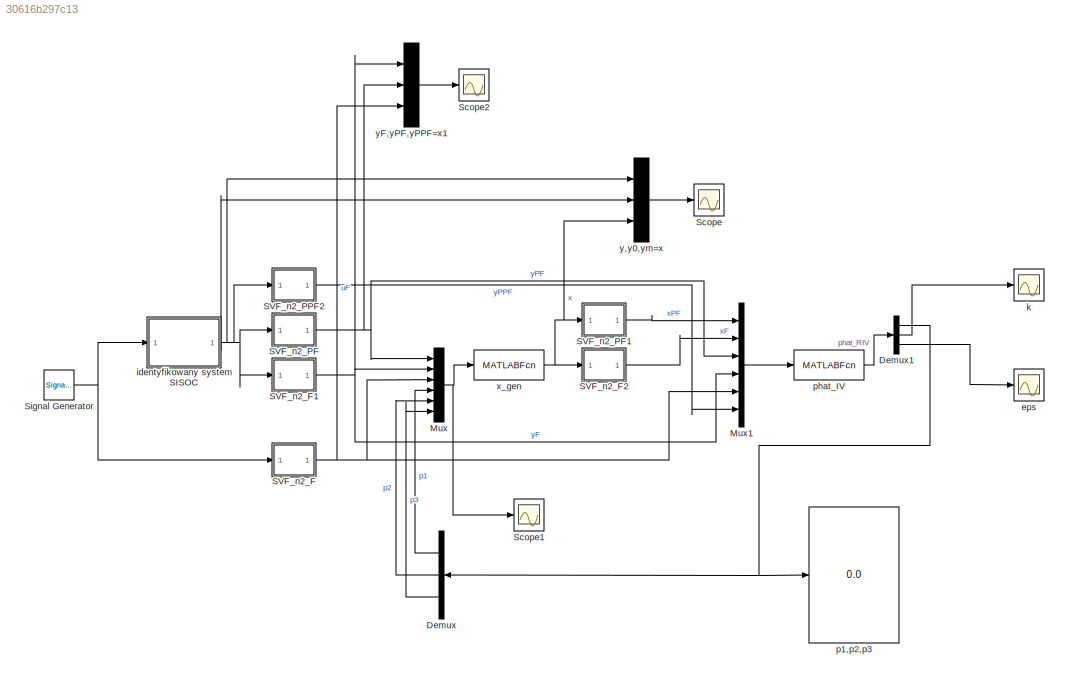
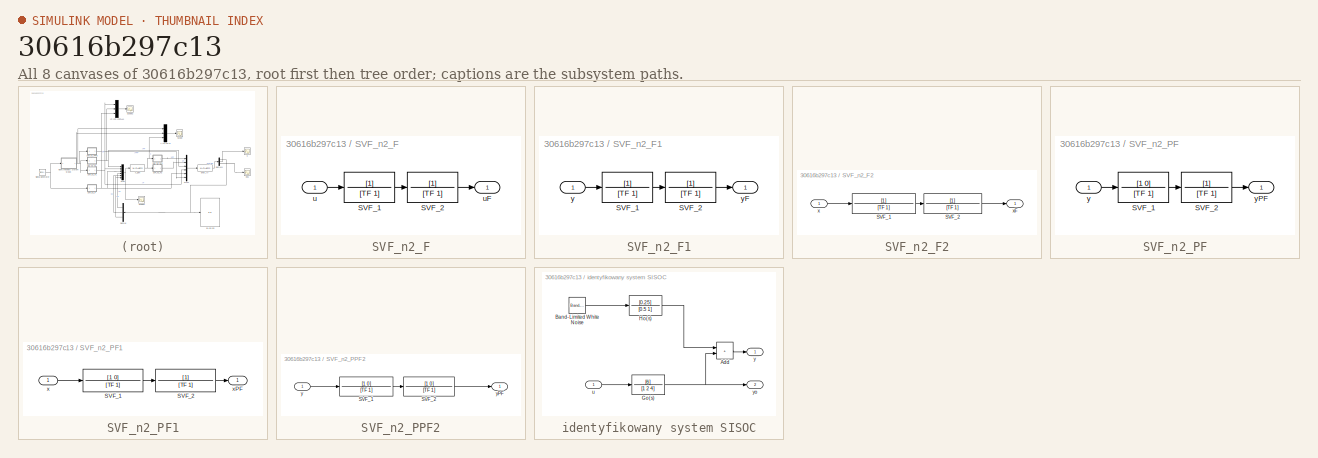
[diagram: thumbnail index - all 8 canvases of the model, root first then tree order]
MODEL mdl_30616b297c13
KIND model
CONFIG AbsTol = auto
CONFIG EnableMultiTasking = on
CONFIG FixedStep = auto
CONFIG InitFcn = PIV_n1 = zeros(3,3);\nphat_RIV_n1 = zeros(3,1);
CONFIG MaxStep = 0.01
CONFIG MinStep = auto
CONFIG RelTol = 1e-3
CONFIG SampleTimeConstraint = Unconstrained
CONFIG SolverName = ode45
CONFIG StartTime = 0.0
CONFIG StopTime = tend
BLOCK [Demux] Demux
  NameLocation = top
  Outputs = 3
BLOCK [Demux] Demux1
  Outputs = [3;3;1]
BLOCK [Mux] Mux
  DisplayOption = bar
  Inputs = 6
BLOCK [Mux] Mux1
  DisplayOption = bar
  Inputs = 6
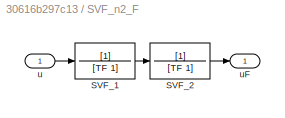
BLOCK [SubSystem] SVF_n2_F
BLOCK [TransferFcn] SVF_n2_F/SVF_1
  Denominator = [TF 1]
BLOCK [TransferFcn] SVF_n2_F/SVF_2
  Denominator = [TF 1]
BLOCK [Inport] SVF_n2_F/u
BLOCK [Outport] SVF_n2_F/uF
BLOCK [SubSystem] SVF_n2_F1
BLOCK [TransferFcn] SVF_n2_F1/SVF_1
  Denominator = [TF 1]
BLOCK [TransferFcn] SVF_n2_F1/SVF_2
  Denominator = [TF 1]
BLOCK [Inport] SVF_n2_F1/y
BLOCK [Outport] SVF_n2_F1/yF
BLOCK [SubSystem] SVF_n2_F2
BLOCK [TransferFcn] SVF_n2_F2/SVF_1
  Denominator = [TF 1]
BLOCK [TransferFcn] SVF_n2_F2/SVF_2
  Denominator = [TF 1]
BLOCK [Inport] SVF_n2_F2/x
BLOCK [Outport] SVF_n2_F2/xF
BLOCK [SubSystem] SVF_n2_PF
BLOCK [TransferFcn] SVF_n2_PF/SVF_1
  Denominator = [TF 1]
  Numerator = [1 0]
BLOCK [TransferFcn] SVF_n2_PF/SVF_2
  Denominator = [TF 1]
BLOCK [Inport] SVF_n2_PF/y
BLOCK [Outport] SVF_n2_PF/yPF
BLOCK [SubSystem] SVF_n2_PF1
BLOCK [TransferFcn] SVF_n2_PF1/SVF_1
  Denominator = [TF 1]
  Numerator = [1 0]
BLOCK [TransferFcn] SVF_n2_PF1/SVF_2
  Denominator = [TF 1]
BLOCK [Inport] SVF_n2_PF1/x
BLOCK [Outport] SVF_n2_PF1/xPF
BLOCK [SubSystem] SVF_n2_PPF2
BLOCK [TransferFcn] SVF_n2_PPF2/SVF_1
  Denominator = [TF 1]
  Numerator = [1 0]
BLOCK [TransferFcn] SVF_n2_PPF2/SVF_2
  Denominator = [TF 1]
  Numerator = [1 0]
BLOCK [Inport] SVF_n2_PPF2/y
BLOCK [Outport] SVF_n2_PPF2/yPF
BLOCK [Scope] Scope
  Floating = off
  NumInputPorts = 1
  ScopeSpecificationString = Simulink.scopes.TimeScopeBlockCfg('CurrentConfiguration', extmgr.ConfigurationSet(extmgr.Configuration('Core','General UI',true),extmgr.Configuration('Core','Source UI',true),extmgr.Configuration('Sources','WiredSimulink',true),extmgr.Configuration('Visuals','Time Domain',true,'SerializedDisplays',{struct('MinYLimReal','-1.00000','MaxYLimReal','1.00000','YLabelReal','','MinYLimMag','0.00000','MaxY...<+1413ch>
BLOCK [Scope] Scope1
  Floating = off
  NumInputPorts = 1
  ScopeSpecificationString = Simulink.scopes.TimeScopeBlockCfg('CurrentConfiguration', extmgr.ConfigurationSet(extmgr.Configuration('Core','General UI',true),extmgr.Configuration('Core','Source UI',true),extmgr.Configuration('Sources','WiredSimulink',true,'DataLoggingVariableName','ScopeData1'),extmgr.Configuration('Visuals','Time Domain',true,'SerializedDisplays',{struct('MinYLimReal','-2.81588','MaxYLimReal','2.79179','YLab...<+1399ch>
BLOCK [Scope] Scope2
  Floating = off
  NumInputPorts = 1
  ScopeSpecificationString = Simulink.scopes.TimeScopeBlockCfg('CurrentConfiguration', extmgr.ConfigurationSet(extmgr.Configuration('Core','General UI',true),extmgr.Configuration('Core','Source UI',true),extmgr.Configuration('Sources','WiredSimulink',true,'DataLoggingVariableName','ScopeData1'),extmgr.Configuration('Visuals','Time Domain',true,'SerializedDisplays',{struct('MinYLimReal','-1.00000','MaxYLimReal','1.00000','YLab...<+1401ch>
BLOCK [SignalGenerator] Signal Generator
  Frequency = 0.04
  WaveForm = square
BLOCK [Scope] eps
  Floating = off
  NumInputPorts = 1
  ScopeSpecificationString = Simulink.scopes.TimeScopeBlockCfg('CurrentConfiguration', extmgr.ConfigurationSet(extmgr.Configuration('Core','General UI',true),extmgr.Configuration('Core','Source UI',true),extmgr.Configuration('Sources','WiredSimulink',true,'DataLoggingVariableName','ScopeData3'),extmgr.Configuration('Visuals','Time Domain',true,'SerializedDisplays',{struct('MinYLimReal','-1.00000','MaxYLimReal','1.00000','YLab...<+1396ch>
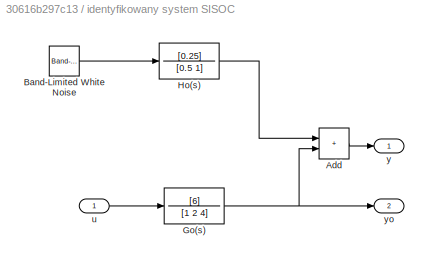
BLOCK [SubSystem] identyfikowany system SISOC
BLOCK [Sum] identyfikowany system SISOC/Add
  IconShape = rectangular
BLOCK [Reference] identyfikowany system SISOC/Band-Limited White Noise  REF=simulink/Sources/Band-Limited
White Noise
  SourceBlock = simulink/Sources/Band-Limited\nWhite Noise
  SourceType = Band-Limited White Noise.
BLOCK [TransferFcn] identyfikowany system SISOC/Go(s)
  Denominator = [1 2 4]
  Numerator = [6]
BLOCK [TransferFcn] identyfikowany system SISOC/Ho(s)
  Denominator = [0.5 1]
  Numerator = [0.25]
BLOCK [Inport] identyfikowany system SISOC/u
BLOCK [Outport] identyfikowany system SISOC/y
BLOCK [Outport] identyfikowany system SISOC/yo
  Port = 2
BLOCK [Scope] k
  Floating = off
  NumInputPorts = 1
  ScopeSpecificationString = Simulink.scopes.TimeScopeBlockCfg('CurrentConfiguration', extmgr.ConfigurationSet(extmgr.Configuration('Core','General UI',true),extmgr.Configuration('Core','Source UI',true),extmgr.Configuration('Sources','WiredSimulink',true,'DataLoggingVariableName','ScopeData2'),extmgr.Configuration('Visuals','Time Domain',true,'SerializedDisplays',{struct('MinYLimReal','-1.00000','MaxYLimReal','1.00000','YLab...<+1423ch>
BLOCK [Display] p1,p2,p3
  Decimation = 1
BLOCK [MATLABFcn] phat_IV
  MATLABFcn = PIV
  OutputDimensions = 7
  OutputSignalType = real
BLOCK [MATLABFcn] x_gen
  MATLABFcn = x_gen
  OutputDimensions = 1
BLOCK [Mux] y,y0,ym=x
  DisplayOption = bar
  Inputs = 3
BLOCK [Mux] yF,yPF,yPPF=x1
  DisplayOption = bar
  Inputs = 3
NET Demux1:1 -> Demux:1, p1,p2,p3:1
LINE Demux1:2 -> k:1
LINE Demux1:3 -> eps:1
LINE Demux:1 -> Mux:4
LINE Demux:2 -> Mux:5
LINE Demux:3 -> Mux:6
LINE Mux1:1 -> phat_IV:1
NET Mux:1 -> Scope1:1, x_gen:1
LINE SVF_n2_F/SVF_1:1 -> SVF_n2_F/SVF_2:1
LINE SVF_n2_F/SVF_2:1 -> SVF_n2_F/uF:1
LINE SVF_n2_F/u:1 -> SVF_n2_F/SVF_1:1
LINE SVF_n2_F1/SVF_1:1 -> SVF_n2_F1/SVF_2:1
LINE SVF_n2_F1/SVF_2:1 -> SVF_n2_F1/yF:1
LINE SVF_n2_F1/y:1 -> SVF_n2_F1/SVF_1:1
NET SVF_n2_F1:1 -> Mux1:4, Mux:2, yF,yPF,yPPF=x1:1
LINE SVF_n2_F2/SVF_1:1 -> SVF_n2_F2/SVF_2:1
LINE SVF_n2_F2/SVF_2:1 -> SVF_n2_F2/xF:1
LINE SVF_n2_F2/x:1 -> SVF_n2_F2/SVF_1:1
LINE SVF_n2_F2:1 -> Mux1:2
NET SVF_n2_F:1 -> Mux1:5, Mux:3, yF,yPF,yPPF=x1:3
LINE SVF_n2_PF/SVF_1:1 -> SVF_n2_PF/SVF_2:1
LINE SVF_n2_PF/SVF_2:1 -> SVF_n2_PF/yPF:1
LINE SVF_n2_PF/y:1 -> SVF_n2_PF/SVF_1:1
LINE SVF_n2_PF1/SVF_1:1 -> SVF_n2_PF1/SVF_2:1
LINE SVF_n2_PF1/SVF_2:1 -> SVF_n2_PF1/xPF:1
LINE SVF_n2_PF1/x:1 -> SVF_n2_PF1/SVF_1:1
LINE SVF_n2_PF1:1 -> Mux1:1
NET SVF_n2_PF:1 -> Mux1:3, Mux:1, yF,yPF,yPPF=x1:2
LINE SVF_n2_PPF2/SVF_1:1 -> SVF_n2_PPF2/SVF_2:1
LINE SVF_n2_PPF2/SVF_2:1 -> SVF_n2_PPF2/yPF:1
LINE SVF_n2_PPF2/y:1 -> SVF_n2_PPF2/SVF_1:1
LINE SVF_n2_PPF2:1 -> Mux1:6
NET Signal Generator:1 -> SVF_n2_F:1, identyfikowany system SISOC:1
LINE identyfikowany system SISOC/Add:1 -> identyfikowany system SISOC/y:1
LINE identyfikowany system SISOC/Band-Limited White Noise:1 -> identyfikowany system SISOC/Ho(s):1
NET identyfikowany system SISOC/Go(s):1 -> identyfikowany system SISOC/Add:2, identyfikowany system SISOC/yo:1
LINE identyfikowany system SISOC/Ho(s):1 -> identyfikowany system SISOC/Add:1
LINE identyfikowany system SISOC/u:1 -> identyfikowany system SISOC/Go(s):1
NET identyfikowany system SISOC:1 -> SVF_n2_F1:1, SVF_n2_PF:1, SVF_n2_PPF2:1, y,y0,ym=x:1
LINE identyfikowany system SISOC:2 -> y,y0,ym=x:2
LINE phat_IV:1 -> Demux1:1
NET x_gen:1 -> SVF_n2_F2:1, SVF_n2_PF1:1, y,y0,ym=x:3
LINE y,y0,ym=x:1 -> Scope:1
LINE yF,yPF,yPPF=x1:1 -> Scope2:1
note: NET lines group one-source signal fan-out (src -> all destinations, sorted); 1:1 wires keep LINE
